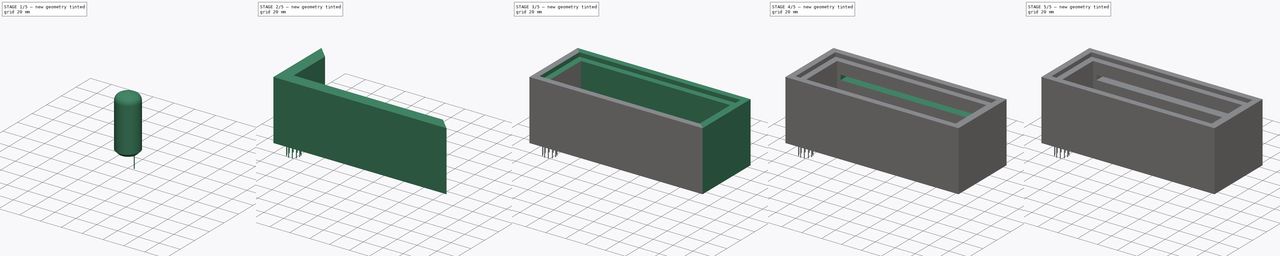
[diagram: build sequence overview — one tinted view per stage of 5, left to right]
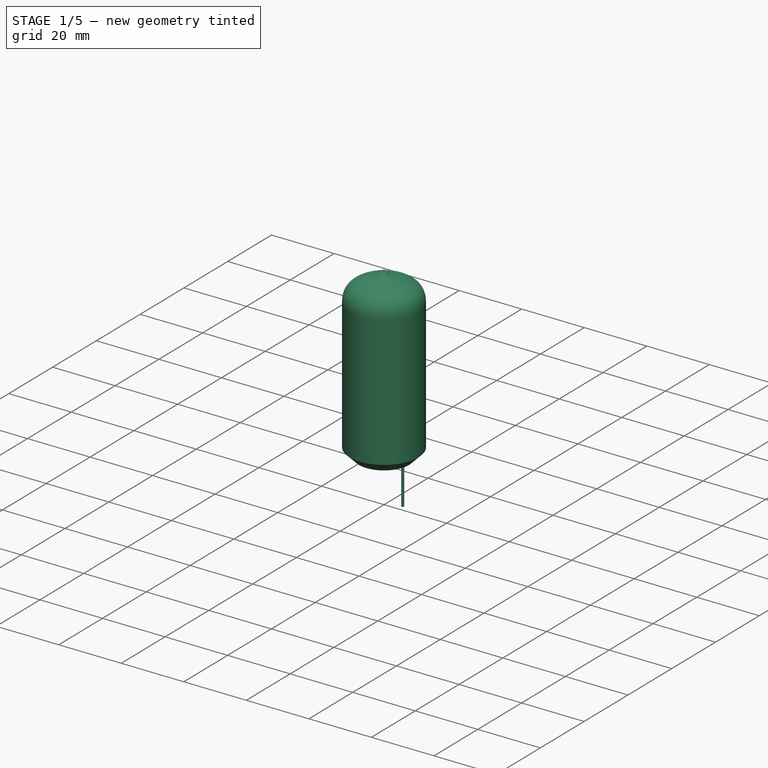
[diagram: stage 1 of 5 — iso view after this stage's code; geometry added in this stage tinted green]
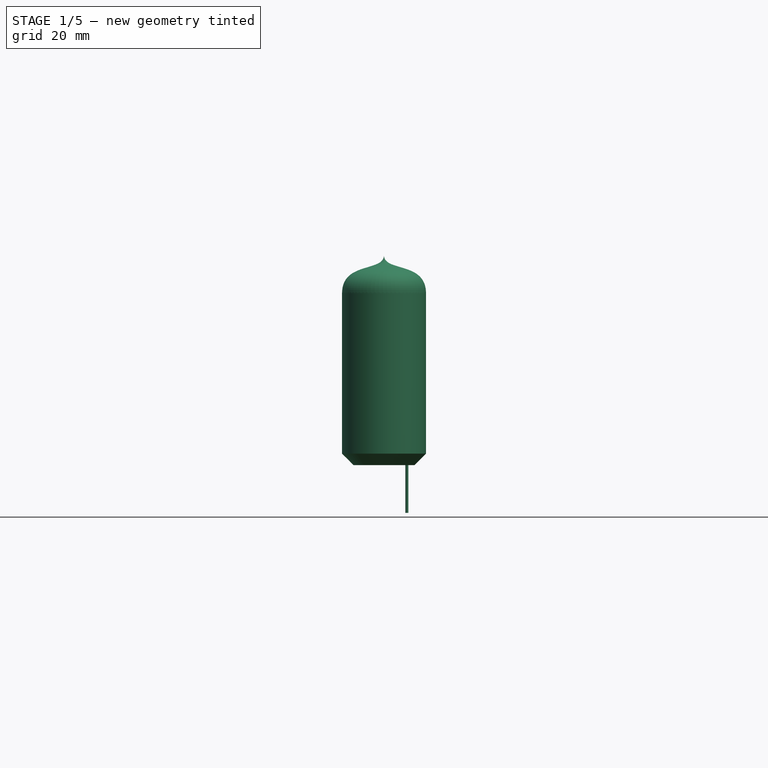
[diagram: stage 1 of 5 — front view after this stage's code; geometry added in this stage tinted green]
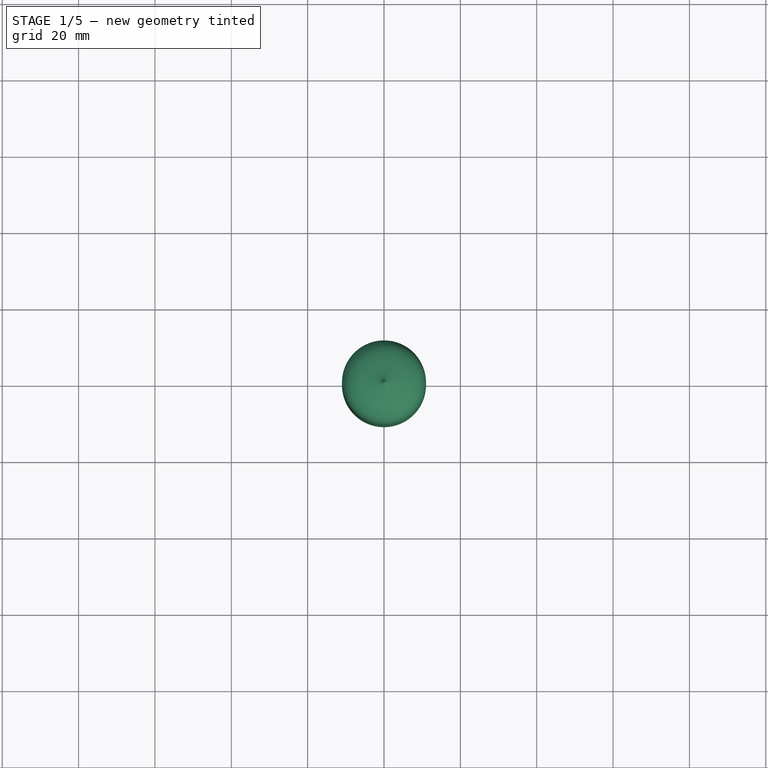
[diagram: stage 1 of 5 — top view after this stage's code; geometry added in this stage tinted green]
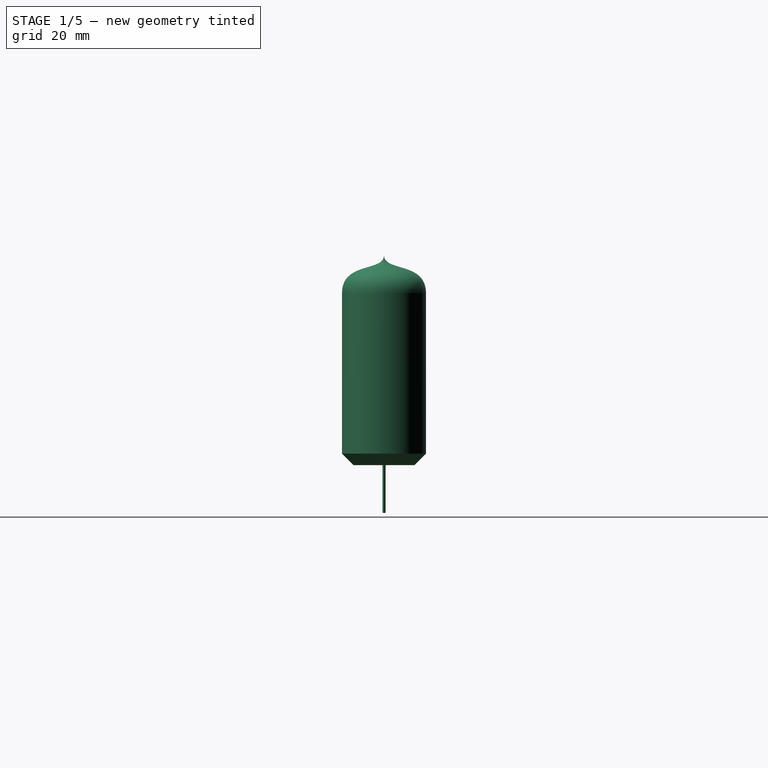
[diagram: stage 1 of 5 — right view after this stage's code; geometry added in this stage tinted green]
FCSTD DOCUMENT  (FreeCAD 0.20R29410 (Git))
Label: aiometer
License: All rights reserved
LicenseURL: http://en.wikipedia.org/wiki/All_rights_reserved
objects: Sketcher::SketchObject×11, PartDesign::CoordinateSystem×10, App::Link×8, PartDesign::Pad×7, PartDesign::Body×3, App::DocumentObjectGroup×3, PartDesign::Pocket×2, PartDesign::Chamfer×2, PartDesign::Hole×1, PartDesign::Fillet×1, PartDesign::Revolution×1, PartDesign::PolarPattern×1, App::FeaturePython×1, App::Part×1
note: 53 computed .brp shape members not serialized (recipe doc carries the construction recipe); baked Part::Feature solids carry a one-line shape summary decoded from their .brp

FEATURE [Sketcher::SketchObject] Sketch012  label="tube"
  FullyConstrained = false
  MapMode = 5
  Placement = pos=(0,0,0) rot=(1,0,0;1.5708rad)
  Support = -> [XZ_Plane003]
  sketch-geometry (10):
    g0: LineSegment StartX=0 StartY=55 StartZ=0 EndX=0 EndY=0 EndZ=0
    g1: LineSegment StartX=0 StartY=0 StartZ=0 EndX=11 EndY=0 EndZ=0
    g2: LineSegment StartX=11 StartY=0 StartZ=0 EndX=11 EndY=45 EndZ=0
    g3-g6: Circle x4 (B-spline internal-alignment scaffolding for g7; pole/knot coordinates omitted)
    g7: BSplineCurve PolesCount=4 KnotsCount=2 Degree=3 IsPeriodic=0
    g8: GeomPoint X=0 Y=55 Z=0
    g9: GeomPoint X=11 Y=45 Z=0
  constraints (20):
    c: PointOnObject(g0,g-2)
    c: Coincident(g0,g-1)
    c: Coincident(g0,g1)
    c: Horizontal(g1)
    c: Coincident(g1,g2)
    c: Vertical(g2)
    c: DistanceX(g1,g1) = 11
    c: DistanceY(g0,g0) = 55
    c: DistanceY(g2,g2) = 45
    c: Weight(g3) = 1
    c: Coincident(g7,g0)
    c: Equal(g3,g4)
    c: Equal(g3,g5)
    c: Equal(g3,g6)
    c: Coincident(g7,g2)
    c: InternalAlignment(g3-g6 -> g7) x4
    c: InternalAlignment(g8,g7)
    c: InternalAlignment(g9,g7)
    c: Vertical(g2,g5)
    c: PointOnObject(g4,g0)
FEATURE [PartDesign::Revolution] Revolution  label="Tube"
  Angle = 360
  Axis = (0,-2e-16,1)
  Base = (0,0,0)
  Placement = pos=(0,0,0) rot=(1,0,0;1.5708rad)
  Profile = -> Sketch012
  ReferenceAxis = -> Sketch012 [V_Axis]
  Reversed = true
FEATURE [Sketcher::SketchObject] Sketch013
  FullyConstrained = true
  MapMode = 5
  Placement = pos=(0,0,0) rot=(1,0,0;3.14159rad)
  Support = -> [Revolution]
  sketch-geometry (1):
    g0: Circle CenterX=6 CenterY=0 CenterZ=0 NormalX=0 NormalY=0 NormalZ=1 AngleXU=0 Radius=0.4
  constraints (3):
    c: Diameter(g0) = 0.8
    c: DistanceX(g-1,g0) = 6
    c: PointOnObject(g0,g-1)
FEATURE [PartDesign::Chamfer] Chamfer001
  Angle = 45
  Base = -> Revolution [Edge1]
  BaseFeature = -> Revolution
  ChamferType = 0
  FlipDirection = false
  Placement = pos=(0,0,0) rot=(1,0,0;1.5708rad)
  Size = 3
  Size2 = 1
  SupportTransform = false
  UseAllEdges = false
FEATURE [PartDesign::Pad] Pad008  label="Lead"
  BaseFeature = -> Chamfer001
  Direction = (0,2e-16,-1)
  Length = 12.5
  Length2 = 10
  Placement = pos=(0,0,0) rot=(1,0,0;1.5708rad)
  Profile = -> Sketch013
  ReferenceAxis = -> Sketch013 [N_Axis]
  Type = 0
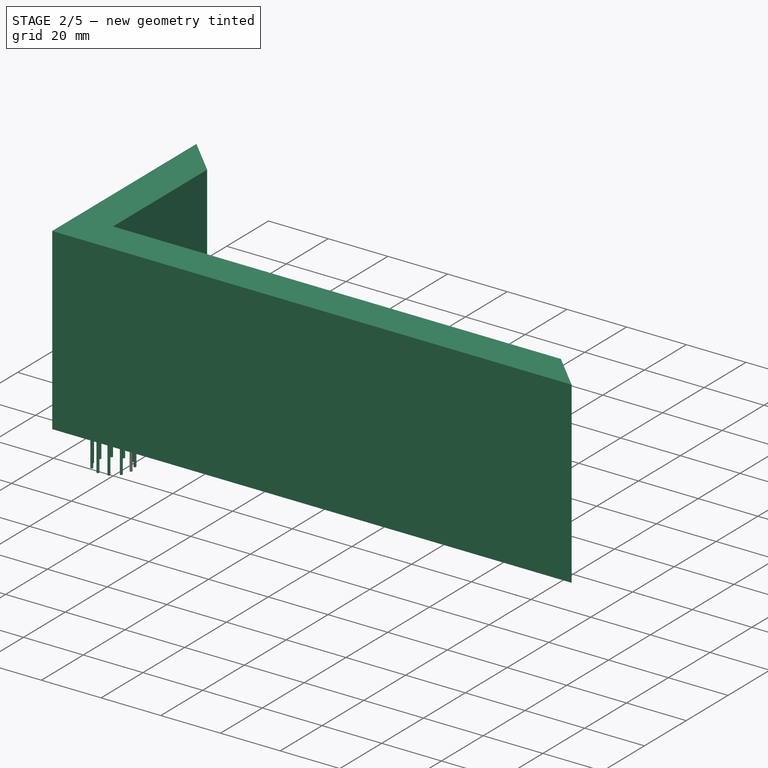
[diagram: stage 2 of 5 — iso view after this stage's code; geometry added in this stage tinted green]
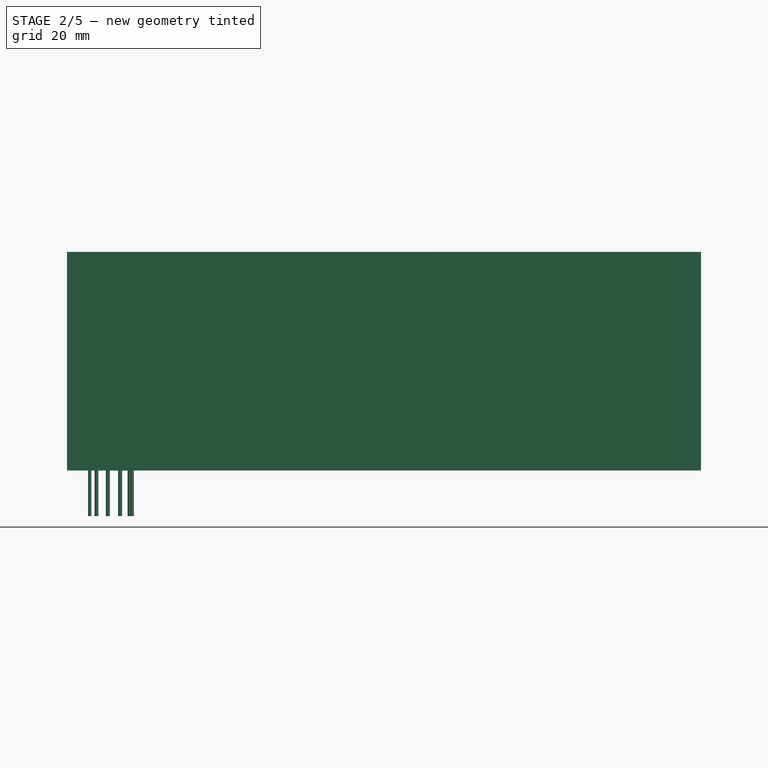
[diagram: stage 2 of 5 — front view after this stage's code; geometry added in this stage tinted green]
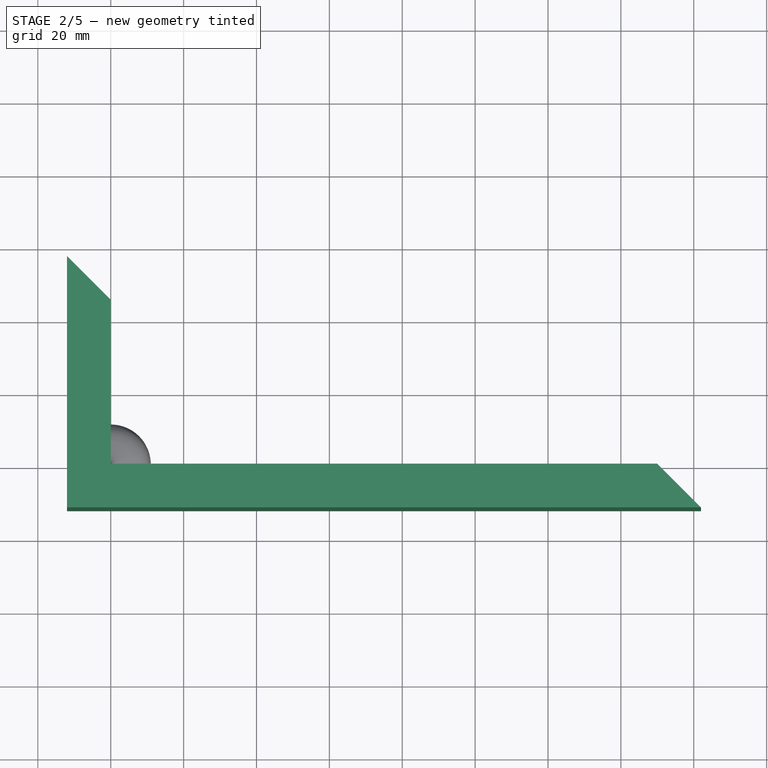
[diagram: stage 2 of 5 — top view after this stage's code; geometry added in this stage tinted green]
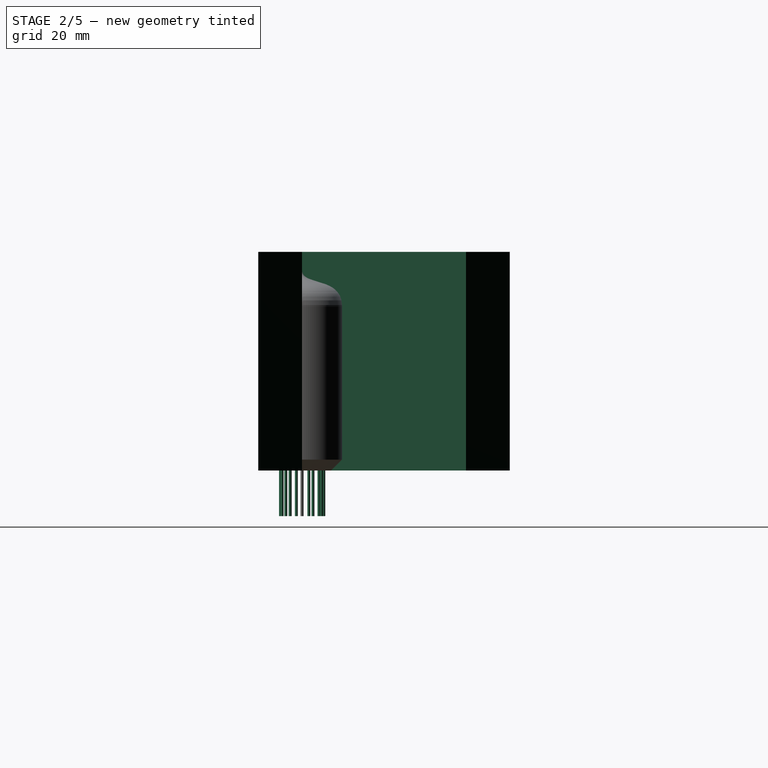
[diagram: stage 2 of 5 — right view after this stage's code; geometry added in this stage tinted green]
FEATURE [Sketcher::SketchObject] Sketch  label="front"
  FullyConstrained = true
  MapMode = 5
  Support = -> [XY_Plane]
  sketch-geometry (4):
    g0: LineSegment StartX=162 StartY=-12 StartZ=0 EndX=150 EndY=0 EndZ=0
    g1: LineSegment StartX=150 StartY=0 StartZ=0 EndX=0 EndY=0 EndZ=0
    g2: LineSegment StartX=0 StartY=0 StartZ=0 EndX=-12 EndY=-12 EndZ=0
    g3: LineSegment StartX=-12 StartY=-12 StartZ=0 EndX=162 EndY=-12 EndZ=0
  constraints (11):
    c: Coincident(g0,g1)
    c: Horizontal(g1)
    c: DistanceX(g1,g1) = 150
    c: DistanceY(g0,g0) = 12
    c: Coincident(g-1,g1)
    c: Coincident(g1,g2)
    c: Coincident(g2,g3)
    c: Coincident(g3,g0)
    c: Horizontal(g3)
    c: Angle(g3,g2) = 0.785398
    c: Angle(g0,g3) = 0.785398
FEATURE [PartDesign::Pad] Pad  label="Front"
  Direction = (0,0,1)
  Length = 60
  Length2 = 10
  Profile = -> Sketch
  ReferenceAxis = -> Sketch [N_Axis]
  Type = 0
FEATURE [Sketcher::SketchObject] Sketch001  label="right"
  ExternalGeometry = -> [Pad,Sketch]
  FullyConstrained = true
  MapMode = 5
  Support = -> [XY_Plane]
  sketch-geometry (4):
    g0: LineSegment StartX=0 StartY=45 StartZ=0 EndX=0 EndY=0 EndZ=0
    g1: LineSegment StartX=0 StartY=0 StartZ=0 EndX=-12 EndY=-12 EndZ=0
    g2: LineSegment StartX=-12 StartY=-12 StartZ=0 EndX=-12 EndY=57 EndZ=0
    g3: LineSegment StartX=-12 StartY=57 StartZ=0 EndX=0 EndY=45 EndZ=0
  constraints (10):
    c: Vertical(g0)
    c: Coincident(g0,g-4)
    c: DistanceY(g0,g0) = 45
    c: Coincident(g0,g1)
    c: Coincident(g1,g2)
    c: Vertical(g2)
    c: Coincident(g2,g3)
    c: Coincident(g3,g0)
    c: Coincident(g1,g-5)
    c: Angle(g2,g3) = 0.785398
FEATURE [PartDesign::Pad] Pad001  label="Right"
  BaseFeature = -> Pad
  Direction = (0,0,1)
  Length = 60
  Length2 = 10
  Profile = -> Sketch001
  ReferenceAxis = -> Sketch001 [N_Axis]
  Type = 0
  expr: Length = Pad.Length
FEATURE [PartDesign::PolarPattern] PolarPattern  label="Leads"
  Angle = 330
  Axis = -> Sketch013 [N_Axis]
  BaseFeature = -> Pad008
  Occurrences = 11
  Originals = -> [Pad008]
  Placement = pos=(0,0,0) rot=(1,0,0;1.5708rad)
FEATURE [PartDesign::CoordinateSystem] LCS_t1
  AttacherType = Attacher::AttachEngine3D
  MapMode = 11
  Placement = pos=(12.5,22.5,0) rot=(0,0,1;1.5708rad)
  Support = -> [Chamfer]
FEATURE [PartDesign::CoordinateSystem] LCS_t2
  AttacherType = Attacher::AttachEngine3D
  MapMode = 11
  Placement = pos=(37.5,22.5,0) rot=(0,0,1;1.5708rad)
  Support = -> [Chamfer]
FEATURE [PartDesign::CoordinateSystem] LCS_t3001  label="LCS_t3"
  AttacherType = Attacher::AttachEngine3D
  MapMode = 11
  Placement = pos=(62.5,22.5,0) rot=(0,0,1;1.5708rad)
  Support = -> [Chamfer]
FEATURE [PartDesign::CoordinateSystem] LCS_t4
  AttacherType = Attacher::AttachEngine3D
  MapMode = 11
  Placement = pos=(87.5,22.5,0) rot=(0,0,1;1.5708rad)
  Support = -> [Chamfer]
FEATURE [PartDesign::CoordinateSystem] LCS_t5
  AttacherType = Attacher::AttachEngine3D
  MapMode = 11
  Placement = pos=(112.5,22.5,0) rot=(0,0,1;1.5708rad)
  Support = -> [Chamfer]
FEATURE [PartDesign::CoordinateSystem] LCS_t6
  AttacherType = Attacher::AttachEngine3D
  MapMode = 11
  Placement = pos=(137.5,22.5,0) rot=(0,0,1;1.5708rad)
  Support = -> [Chamfer]
FEATURE [PartDesign::CoordinateSystem] LCS_sheet
  AttacherType = Attacher::AttachEngine3D
  MapMode = 2
  Support = -> [Chamfer]
FEATURE [PartDesign::Body] Body001  label="Top_sheet"
  Group = -> [Sketch005,Pad005,Sketch009,Hole,Sketch010,Pad007,Fillet,Chamfer,LCS_t1,LCS_t2,LCS_t3001,LCS_t4,LCS_t5,LCS_t6,LCS_sheet]
  Origin = -> Origin001
  Tip = -> Chamfer
FEATURE [PartDesign::CoordinateSystem] LCS_BODY  label="LCS_body"
  AttacherType = Attacher::AttachEngine3D
  MapMode = 5
  Placement = pos=(0,0,56) rot=(0,0,1;0rad)
  Support = -> [Pocket001]
FEATURE [PartDesign::Body] Body
  Group = -> [Sketch,Pad,Sketch001,Pad001,Pad004,Sketch004,Sketch007,Pad006,Sketch008,Pocket,Sketch011,Pocket001,LCS_BODY]
  Origin = -> Origin
  Tip = -> Pocket001
FEATURE [PartDesign::CoordinateSystem] LCS_Origin
  AttacherType = Attacher::AttachEngine3D
  MapMode = 2
  Support = -> [X_Axis004]
FEATURE [App::DocumentObjectGroup] Constraints
FEATURE [App::FeaturePython] Variables  # WARN: FeaturePython — macro-defined, semantics opaque (R4)
  Type = App::PropertyContainer
FEATURE [App::DocumentObjectGroup] Configurations
FEATURE [App::Link] Body003
  AssemblyType = Part::Link
  AttachedBy = #LCS_BODY
  AttachedTo = Parent Assembly#LCS_Origin
  LinkPlacement = pos=(0,0,-56) rot=(0,0,1;0rad)
  LinkedObject = -> Body
  Placement = pos=(0,0,-56) rot=(0,0,1;0rad)
  SolverId = Asm4EE
  expr: Placement = LCS_Origin.Placement * AttachmentOffset * LCS_BODY.Placement ^ -1
FEATURE [App::Link] Top_sheet  label="Top_sheet001"
  AssemblyType = Part::Link
  AttachedBy = #LCS_sheet
  AttachedTo = Body003#LCS_BODY
  LinkedObject = -> Body001
  SolverId = Asm4EE
  expr: Placement = Body003.Placement * LCS_BODY.Placement * AttachmentOffset * LCS_sheet.Placement ^ -1
FEATURE [PartDesign::CoordinateSystem] LCS_tube
  AttacherType = Attacher::AttachEngine3D
  MapMode = 11
  Placement = pos=(0,7e-16,3) rot=(0,0,1;1.5708rad)
  Support = -> [PolarPattern]
FEATURE [PartDesign::Body] Body002  label="VFDtube"
  Group = -> [Sketch012,Revolution,Chamfer001,Sketch013,Pad008,PolarPattern,LCS_tube]
  Origin = -> Origin003
  Placement = pos=(4,19,0) rot=(0,0,1;0rad)
  Tip = -> PolarPattern
FEATURE [App::DocumentObjectGroup] Parts
  Group = -> [Body,Body001,Body002]
FEATURE [App::Link] VFDtube  label="VFDtube_1"
  AssemblyType = Part::Link
  AttachedBy = #LCS_tube
  AttachedTo = Top_sheet#LCS_t1
  LinkPlacement = pos=(12.5,22.5,-3) rot=(0,0,1;0rad)
  LinkedObject = -> Body002
  Placement = pos=(12.5,22.5,-3) rot=(0,0,1;0rad)
  SolverId = Asm4EE
  expr: Placement = Top_sheet.Placement * LCS_t1.Placement * AttachmentOffset * LCS_tube.Placement ^ -1
FEATURE [App::Link] VFDtube_1  label="VFDtube_2"
  AssemblyType = Part::Link
  AttachedBy = #LCS_tube
  AttachedTo = Top_sheet#LCS_t2
  LinkPlacement = pos=(37.5,22.5,-3) rot=(0,0,1;0rad)
  LinkedObject = -> Body002
  Placement = pos=(37.5,22.5,-3) rot=(0,0,1;0rad)
  SolverId = Asm4EE
  expr: Placement = Top_sheet.Placement * LCS_t2.Placement * AttachmentOffset * LCS_tube.Placement ^ -1
FEATURE [App::Link] VFDtube_2  label="VFDtube_3"
  AssemblyType = Part::Link
  AttachedBy = #LCS_tube
  AttachedTo = Top_sheet#LCS_t3001
  LinkPlacement = pos=(62.5,22.5,-3) rot=(0,0,1;0rad)
  LinkedObject = -> Body002
  Placement = pos=(62.5,22.5,-3) rot=(0,0,1;0rad)
  SolverId = Asm4EE
  expr: Placement = Top_sheet.Placement * LCS_t3001.Placement * AttachmentOffset * LCS_tube.Placement ^ -1
FEATURE [App::Link] VFDtube001  label="VFDtube_4"
  AssemblyType = Part::Link
  AttachedBy = #LCS_tube
  AttachedTo = Top_sheet#LCS_t4
  LinkPlacement = pos=(87.5,22.5,-3) rot=(0,0,1;0rad)
  LinkedObject = -> Body002
  Placement = pos=(87.5,22.5,-3) rot=(0,0,1;0rad)
  SolverId = Asm4EE
  expr: Placement = Top_sheet.Placement * LCS_t4.Placement * AttachmentOffset * LCS_tube.Placement ^ -1
FEATURE [App::Link] VFDtube_3  label="VFDtube_5"
  AssemblyType = Part::Link
  AttachedBy = #LCS_tube
  AttachedTo = Top_sheet#LCS_t5
  LinkPlacement = pos=(112.5,22.5,-3) rot=(0,0,1;0rad)
  LinkedObject = -> Body002
  Placement = pos=(112.5,22.5,-3) rot=(0,0,1;0rad)
  SolverId = Asm4EE
  expr: Placement = Top_sheet.Placement * LCS_t5.Placement * AttachmentOffset * LCS_tube.Placement ^ -1
FEATURE [App::Link] VFDtube_4  label="VFDtube_6"
  AssemblyType = Part::Link
  AttachedBy = #LCS_tube
  AttachedTo = Top_sheet#LCS_t6
  LinkPlacement = pos=(137.5,22.5,-3) rot=(0,0,1;0rad)
  LinkedObject = -> Body002
  Placement = pos=(137.5,22.5,-3) rot=(0,0,1;0rad)
  SolverId = Asm4EE
  expr: Placement = Top_sheet.Placement * LCS_t6.Placement * AttachmentOffset * LCS_tube.Placement ^ -1
FEATURE [App::Part] Model
  AssemblyType = Part::Link
  Group = -> [LCS_Origin,Constraints,Variables,Configurations,Body003,Top_sheet,VFDtube,VFDtube_1,VFDtube_2,VFDtube001,VFDtube_3,VFDtube_4]
  Origin = -> Origin004
  Type = Assembly
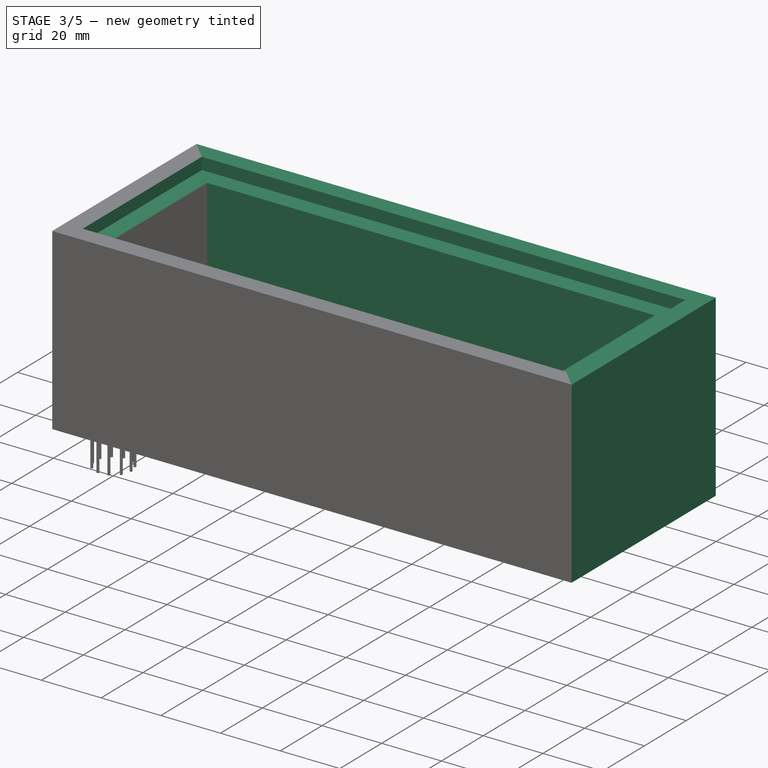
[diagram: stage 3 of 5 — iso view after this stage's code; geometry added in this stage tinted green]
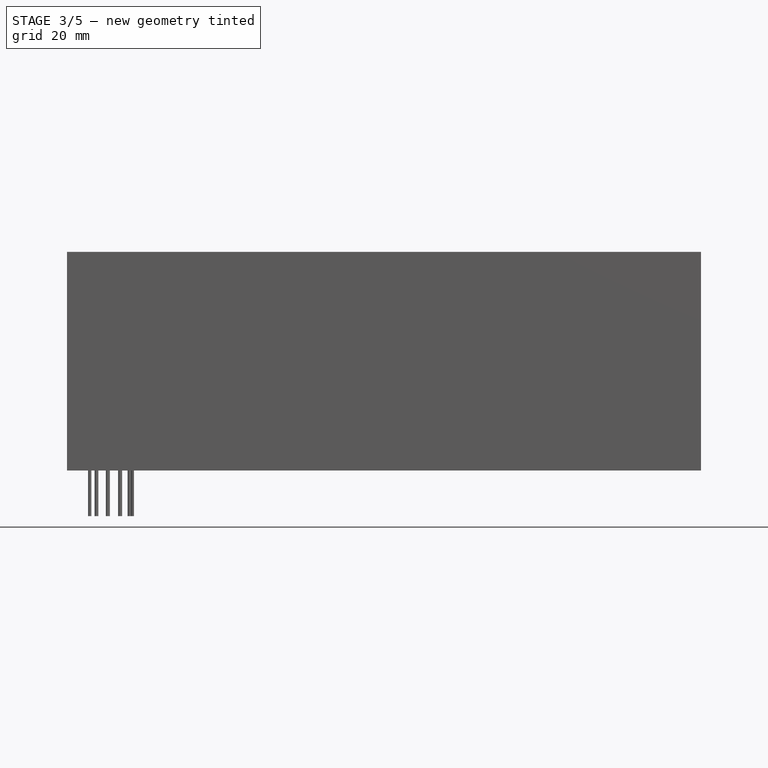
[diagram: stage 3 of 5 — front view after this stage's code; geometry added in this stage tinted green]
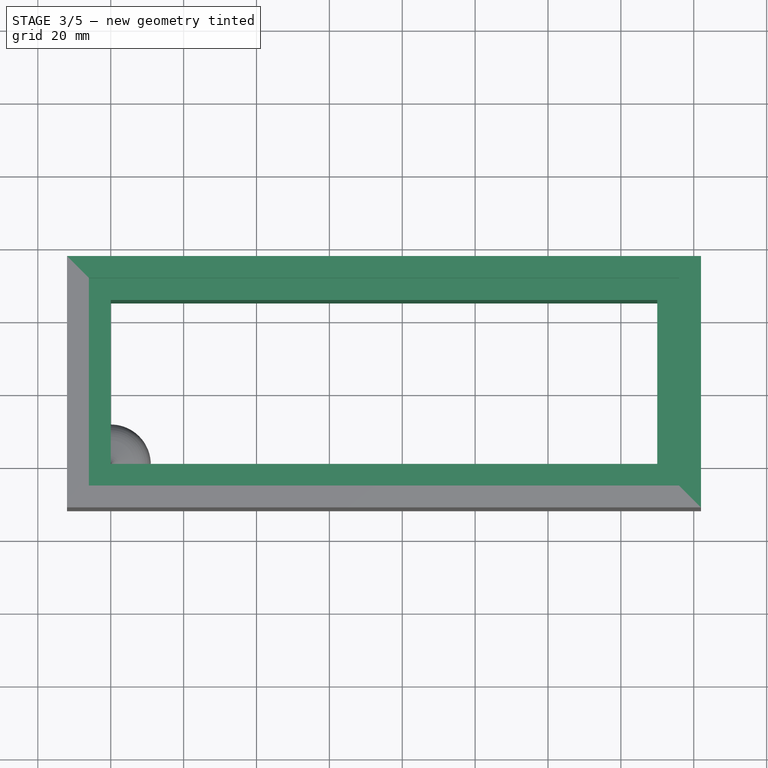
[diagram: stage 3 of 5 — top view after this stage's code; geometry added in this stage tinted green]
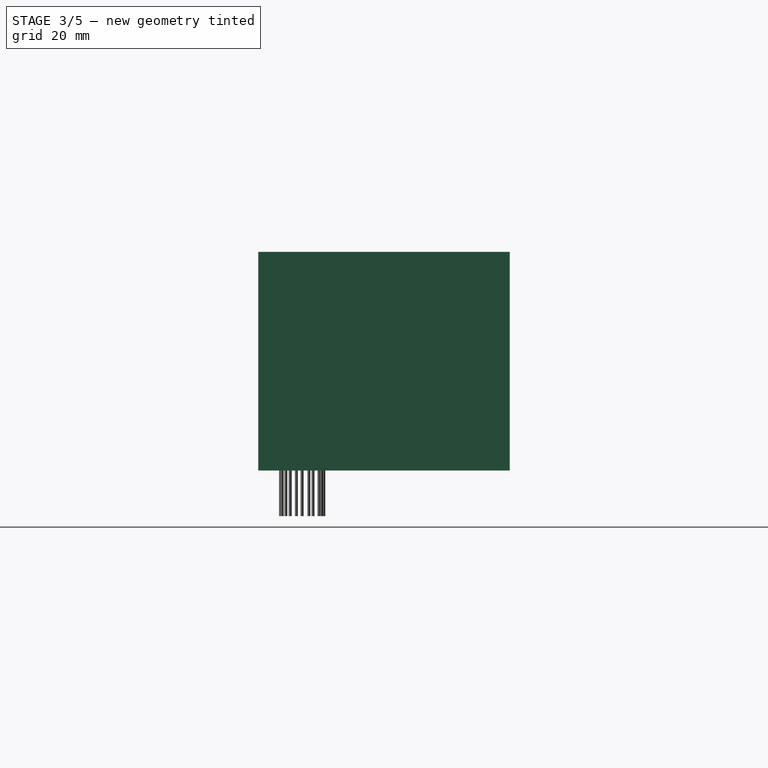
[diagram: stage 3 of 5 — right view after this stage's code; geometry added in this stage tinted green]
FEATURE [Sketcher::SketchObject] Sketch004  label="left"
  ExternalGeometry = -> [Sketch,Sketch001]
  FullyConstrained = true
  MapMode = 5
  Support = -> [XY_Plane]
  sketch-geometry (4):
    g0: LineSegment StartX=150 StartY=0 StartZ=0 EndX=162 EndY=-12 EndZ=0
    g1: LineSegment StartX=162 StartY=-12 StartZ=0 EndX=162 EndY=57 EndZ=0
    g2: LineSegment StartX=162 StartY=57 StartZ=0 EndX=150 EndY=45 EndZ=0
    g3: LineSegment StartX=150 StartY=45 StartZ=0 EndX=150 EndY=0 EndZ=0
  constraints (10):
    c: Coincident(g-4,g0)
    c: Coincident(g0,g-4)
    c: Coincident(g0,g1)
    c: Vertical(g1)
    c: Coincident(g1,g2)
    c: Coincident(g2,g3)
    c: Coincident(g3,g0)
    c: Vertical(g3)
    c: Equal(g3,g-5)
    c: Equal(g1,g-6)
FEATURE [PartDesign::Pad] Pad004  label="Left"
  BaseFeature = -> Pad001
  Direction = (0,0,1)
  Length = 60
  Length2 = 10
  Profile = -> Sketch004
  ReferenceAxis = -> Sketch004 [N_Axis]
  Type = 0
  expr: Length = Pad.Length
FEATURE [Sketcher::SketchObject] Sketch007  label="back"
  ExternalGeometry = -> [Pad004]
  FullyConstrained = true
  MapMode = 5
  Support = -> [XY_Plane]
  sketch-geometry (4):
    g0: LineSegment StartX=-12 StartY=57 StartZ=0 EndX=162 EndY=57 EndZ=0
    g1: LineSegment StartX=162 StartY=57 StartZ=0 EndX=150 EndY=45 EndZ=0
    g2: LineSegment StartX=150 StartY=45 StartZ=0 EndX=0 EndY=45 EndZ=0
    g3: LineSegment StartX=0 StartY=45 StartZ=0 EndX=-12 EndY=57 EndZ=0
  constraints (8):
    c: Coincident(g0,g-3)
    c: Coincident(g0,g-6)
    c: Coincident(g0,g1)
    c: Coincident(g1,g-5)
    c: Coincident(g1,g2)
    c: Coincident(g2,g-4)
    c: Coincident(g2,g3)
    c: Coincident(g3,g0)
FEATURE [PartDesign::Pad] Pad006  label="Back"
  BaseFeature = -> Pad004
  Direction = (0,0,1)
  Length = 60
  Length2 = 10
  Profile = -> Sketch007
  ReferenceAxis = -> Sketch007 [N_Axis]
  Type = 0
  expr: Length = Pad.Length
FEATURE [Sketcher::SketchObject] Sketch008  label="top_step"
  ExternalGeometry = -> [Pad006]
  FullyConstrained = true
  MapMode = 5
  Placement = pos=(0,0,60) rot=(0,0,1;0rad)
  Support = -> [Pad006]
  sketch-geometry (4):
    g0: LineSegment StartX=-6 StartY=51 StartZ=0 EndX=156 EndY=51 EndZ=0
    g1: LineSegment StartX=156 StartY=51 StartZ=0 EndX=156 EndY=-6 EndZ=0
    g2: LineSegment StartX=156 StartY=-6 StartZ=0 EndX=-6 EndY=-6 EndZ=0
    g3: LineSegment StartX=-6 StartY=-6 StartZ=0 EndX=-6 EndY=51 EndZ=0
  constraints (12):
    c: PointOnObject(g0,g-3)
    c: PointOnObject(g0,g-6)
    c: Horizontal(g0)
    c: Coincident(g0,g1)
    c: PointOnObject(g1,g-5)
    c: Vertical(g1)
    c: Coincident(g1,g2)
    c: PointOnObject(g2,g-4)
    c: Horizontal(g2)
    c: Coincident(g2,g3)
    c: Coincident(g3,g0)
    c: DistanceX(g2,g-4) = 6
FEATURE [PartDesign::Pocket] Pocket  label="Top_step"
  BaseFeature = -> Pad006
  Direction = (0,0,-1)
  Length = 4
  Length2 = 5
  Profile = -> Sketch008
  ReferenceAxis = -> Sketch008 [N_Axis]
  Type = 0
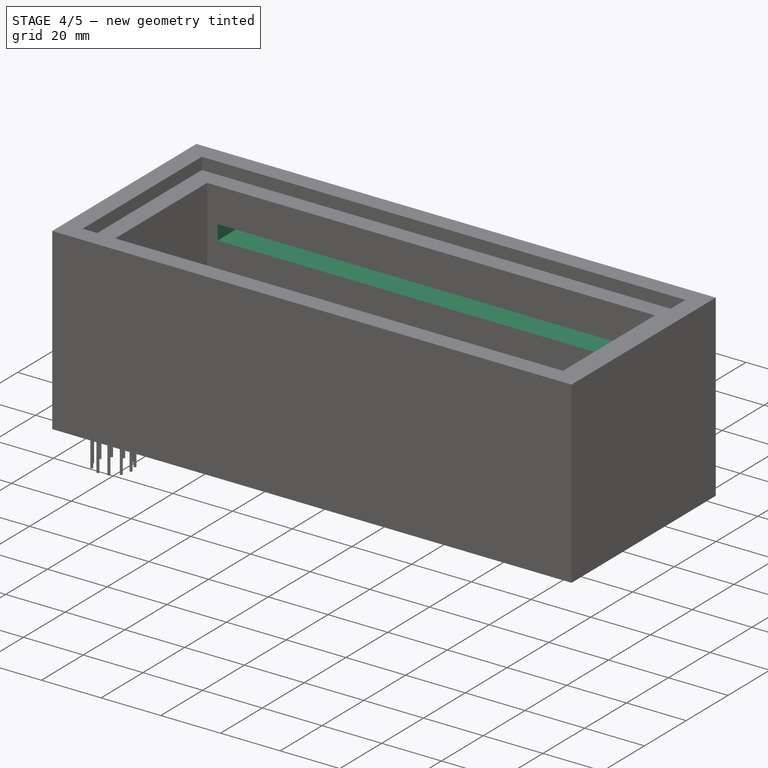
[diagram: stage 4 of 5 — iso view after this stage's code; geometry added in this stage tinted green]
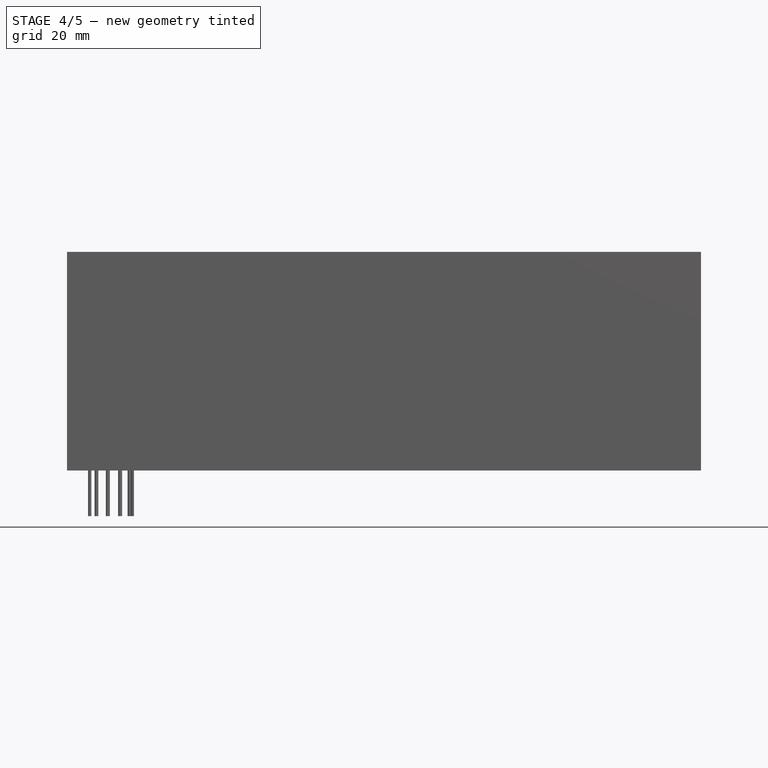
[diagram: stage 4 of 5 — front view after this stage's code; geometry added in this stage tinted green]
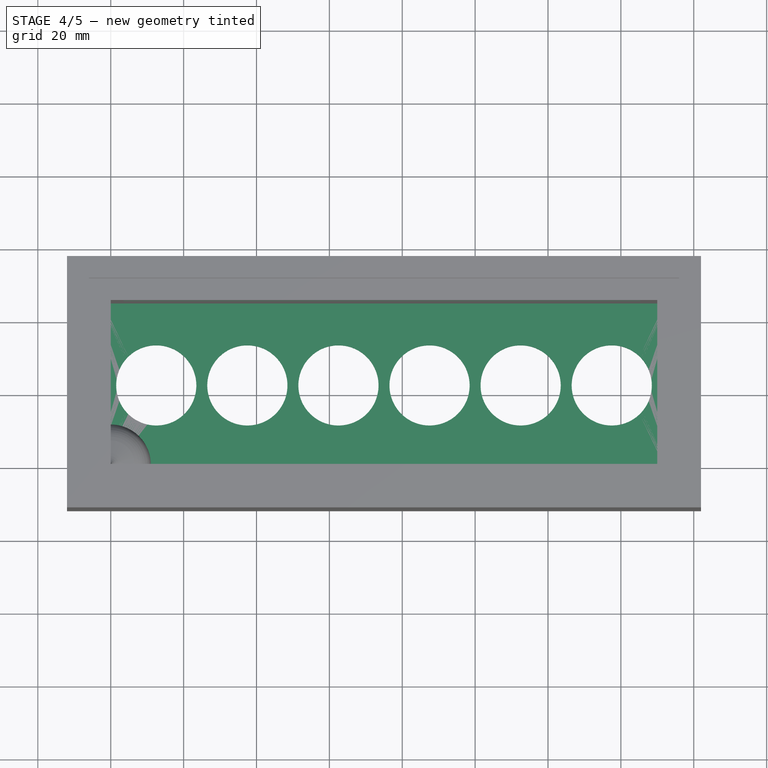
[diagram: stage 4 of 5 — top view after this stage's code; geometry added in this stage tinted green]
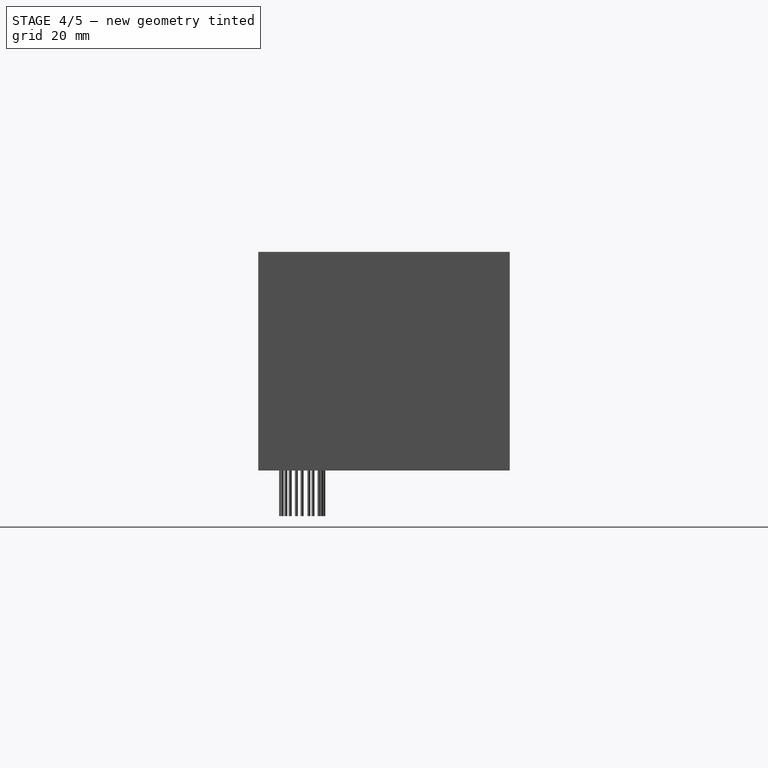
[diagram: stage 4 of 5 — right view after this stage's code; geometry added in this stage tinted green]
FEATURE [Sketcher::SketchObject] Sketch005  label="top"
  FullyConstrained = true
  MapMode = 5
  Support = -> [XY_Plane001]
  sketch-geometry (20):
    g0: LineSegment StartX=0 StartY=45 StartZ=0 EndX=150 EndY=45 EndZ=0
    g1: LineSegment StartX=150 StartY=45 StartZ=0 EndX=150 EndY=0 EndZ=0
    g2: LineSegment StartX=150 StartY=0 StartZ=0 EndX=0 EndY=0 EndZ=0
    g3: Circle CenterX=12.5 CenterY=22.5 CenterZ=0 NormalX=0 NormalY=0 NormalZ=1 AngleXU=0 Radius=11
    g4: Circle CenterX=37.5 CenterY=22.5 CenterZ=0 NormalX=0 NormalY=0 NormalZ=1 AngleXU=0 Radius=11
    g5: LineSegment StartX=12.5 StartY=22.5 StartZ=0 EndX=37.5 EndY=22.5 EndZ=0
    g6: Circle CenterX=62.5 CenterY=22.5 CenterZ=0 NormalX=0 NormalY=0 NormalZ=1 AngleXU=0 Radius=11
    g7: LineSegment StartX=37.5 StartY=22.5 StartZ=0 EndX=62.5 EndY=22.5 EndZ=0
    g8: Circle CenterX=87.5 CenterY=22.5 CenterZ=0 NormalX=0 NormalY=0 NormalZ=1 AngleXU=0 Radius=11
    g9: LineSegment StartX=62.5 StartY=22.5 StartZ=0 EndX=87.5 EndY=22.5 EndZ=0
    g10: Circle CenterX=112.5 CenterY=22.5 CenterZ=0 NormalX=0 NormalY=0 NormalZ=1 AngleXU=0 Radius=11
    g11: LineSegment StartX=87.5 StartY=22.5 StartZ=0 EndX=112.5 EndY=22.5 EndZ=0
    g12: Circle CenterX=137.5 CenterY=22.5 CenterZ=0 NormalX=0 NormalY=0 NormalZ=1 AngleXU=0 Radius=11
    g13: LineSegment StartX=112.5 StartY=22.5 StartZ=0 EndX=137.5 EndY=22.5 EndZ=0
    g14: LineSegment StartX=0 StartY=45 StartZ=0 EndX=0 EndY=0 EndZ=0
    g15: LineSegment StartX=-6 StartY=51 StartZ=0 EndX=156 EndY=51 EndZ=0
    g16: LineSegment StartX=156 StartY=51 StartZ=0 EndX=156 EndY=-6 EndZ=0
    g17: LineSegment StartX=156 StartY=-6 StartZ=0 EndX=-6 EndY=-6 EndZ=0
    g18: LineSegment StartX=-6 StartY=-6 StartZ=0 EndX=-6 EndY=51 EndZ=0
    g19: LineSegment StartX=75 StartY=45 StartZ=0 EndX=75 EndY=0 EndZ=0
  constraints (51):
    c: Coincident(g0,g1)
    c: Coincident(g1,g2)
    c: Horizontal(g0)
    c: Horizontal(g2)
    c: Vertical(g1)
    c: Diameter(g3) = 22
    c: Coincident(g3,g5)
    c: Coincident(g4,g5)
    c: Distance(g5) = 25
    c: Angle(g5) = 0
    c: Coincident(g4,g7)
    c: Coincident(g6,g7)
    c: Equal(g5,g7)
    c: Parallel(g7,g5)
    c: Coincident(g6,g9)
    c: Coincident(g8,g9)
    c: Equal(g5,g9)
    c: Parallel(g9,g5)
    c: Coincident(g8,g11)
    c: Coincident(g10,g11)
    c: Equal(g5,g11)
    c: Parallel(g11,g5)
    c: Coincident(g10,g13)
    c: Coincident(g12,g13)
    c: Equal(g5,g13)
    c: Parallel(g13,g5)
    c: DistanceX(g2,g2) = 150
    c: Coincident(g14,g0)
    c: Coincident(g14,g2)
    c: Coincident(g-1,g2)
    c: Coincident(g15,g16)
    c: Coincident(g16,g17)
    c: Coincident(g17,g18)
    c: Coincident(g18,g15)
    c: Horizontal(g15)
    c: Vertical(g18)
    c: DistanceY(g14,g14) = 45
    c: Equal(g4,g3)
    c: Equal(g3,g6)
    c: Equal(g3,g8)
    c: Equal(g3,g10)
    c: Equal(g3,g12)
    c: Symmetric(g0,g2,g5)
    c: DistanceX(g2,g3) = 12.5
    c: Symmetric(g15,g16,g13)
    c: PointOnObject(g19,g0)
    c: PointOnObject(g19,g2)
    c: Symmetric(g17,g16,g19)
    c: DistanceX(g17,g2) = 6
    c: DistanceY(g17,g2) = 6
    c: Symmetric(g2,g1,g19)
FEATURE [PartDesign::Pad] Pad005  label="Top"
  Direction = (0,0,1)
  Length = 1.5
  Length2 = 10
  Profile = -> Sketch005
  ReferenceAxis = -> Sketch005 [N_Axis]
  Type = 0
FEATURE [Sketcher::SketchObject] Sketch009
  ExternalGeometry = -> [Pad005]
  FullyConstrained = true
  MapMode = 5
  Placement = pos=(0,0,1.5) rot=(0,0,1;0rad)
  Support = -> [Pad005]
  sketch-geometry (10):
    g0: Circle CenterX=152.5 CenterY=47.5 CenterZ=0 NormalX=0 NormalY=0 NormalZ=1 AngleXU=0 Radius=1.5
    g1: Circle CenterX=-2.5 CenterY=47.5 CenterZ=0 NormalX=0 NormalY=0 NormalZ=1 AngleXU=0 Radius=1.5
    g2: LineSegment StartX=-2.5 StartY=47.5 StartZ=0 EndX=152.5 EndY=47.5 EndZ=0
    g3: LineSegment StartX=-2.5 StartY=47.5 StartZ=0 EndX=-2.5 EndY=-2.5 EndZ=0
    g4: LineSegment StartX=152.5 StartY=47.5 StartZ=0 EndX=152.5 EndY=-2.5 EndZ=0
    g5: LineSegment StartX=-2.5 StartY=-2.5 StartZ=0 EndX=152.5 EndY=-2.5 EndZ=0
    g6: LineSegment StartX=75 StartY=47.5 StartZ=0 EndX=75 EndY=-2.5 EndZ=0
    g7: LineSegment StartX=-2.5 StartY=22.5 StartZ=0 EndX=152.5 EndY=22.5 EndZ=0
    g8: Circle CenterX=-2.5 CenterY=-2.5 CenterZ=0 NormalX=0 NormalY=0 NormalZ=1 AngleXU=0 Radius=1.5
    g9: Circle CenterX=152.5 CenterY=-2.5 CenterZ=0 NormalX=0 NormalY=0 NormalZ=1 AngleXU=0 Radius=1.5
  constraints (24):
    c: Horizontal(g2)
    c: Vertical(g4)
    c: Coincident(g3,g2)
    c: Coincident(g2,g4)
    c: Coincident(g5,g3)
    c: Coincident(g5,g4)
    c: DistanceX(g-4,g2) = 3.5
    c: DistanceY(g2,g-4) = 3.5
    c: PointOnObject(g6,g2)
    c: PointOnObject(g6,g5)
    c: PointOnObject(g7,g3)
    c: PointOnObject(g7,g4)
    c: Symmetric(g-5,g-6,g6)
    c: Symmetric(g-4,g-5,g7)
    c: Symmetric(g3,g4,g6)
    c: Symmetric(g3,g2,g7)
    c: Diameter(g1) = 3
    c: Coincident(g1,g2)
    c: Equal(g0,g1)
    c: Coincident(g0,g2)
    c: Equal(g1,g8)
    c: Equal(g1,g9)
    c: Coincident(g3,g8)
    c: Coincident(g9,g4)
FEATURE [PartDesign::Hole] Hole
  BaseFeature = -> Pad005
  CustomThreadClearance = 0
  Depth = 25
  DepthType = 0
  Diameter = 3
  DrillForDepth = false
  DrillPoint = 0
  DrillPointAngle = 118
  HoleCutCountersinkAngle = 90
  HoleCutCustomValues = false
  HoleCutDepth = 0
  HoleCutDiameter = 5.4
  HoleCutType = 2
  ModelThread = false
  Profile = -> Sketch009
  Tapered = false
  TaperedAngle = 90
  ThreadClass = 0
  ThreadDepth = 25
  ThreadDepthType = 0
  ThreadDirection = 0
  ThreadFit = 0
  ThreadSize = 0
  ThreadType = 0
  Threaded = false
  UseCustomThreadClearance = false
FEATURE [Sketcher::SketchObject] Sketch011
  FullyConstrained = false
  MapMode = 5
  Placement = pos=(0,57,0) rot=(0,0.707107,0.707107;3.14159rad)
  Support = -> [Pad006]
  sketch-geometry (4):
    g0: LineSegment StartX=-145.309 StartY=44.4355 StartZ=0 EndX=-3.53485 EndY=44.4355 EndZ=0
    g1: LineSegment StartX=-3.53485 StartY=44.4355 StartZ=0 EndX=-3.53485 EndY=39.5279 EndZ=0
    g2: LineSegment StartX=-3.53485 StartY=39.5279 StartZ=0 EndX=-145.309 EndY=39.5279 EndZ=0
    g3: LineSegment StartX=-145.309 StartY=39.5279 StartZ=0 EndX=-145.309 EndY=44.4355 EndZ=0
  constraints (8):
    c: Coincident(g0,g1)
    c: Coincident(g1,g2)
    c: Coincident(g2,g3)
    c: Coincident(g3,g0)
    c: Horizontal(g0)
    c: Horizontal(g2)
    c: Vertical(g1)
    c: Vertical(g3)
FEATURE [PartDesign::Pocket] Pocket001
  BaseFeature = -> Pocket
  Direction = (0,-1,2e-16)
  Length = 0
  Length2 = 5
  Profile = -> Sketch011
  ReferenceAxis = -> Sketch011 [N_Axis]
  Type = 2
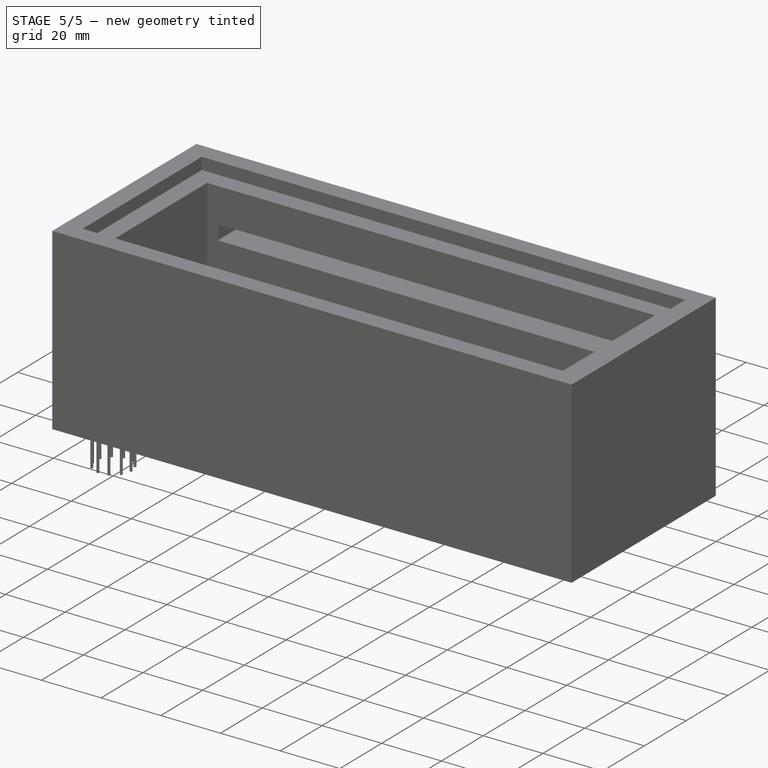
[diagram: stage 5 of 5 — iso view after this stage's code; geometry added in this stage tinted green]
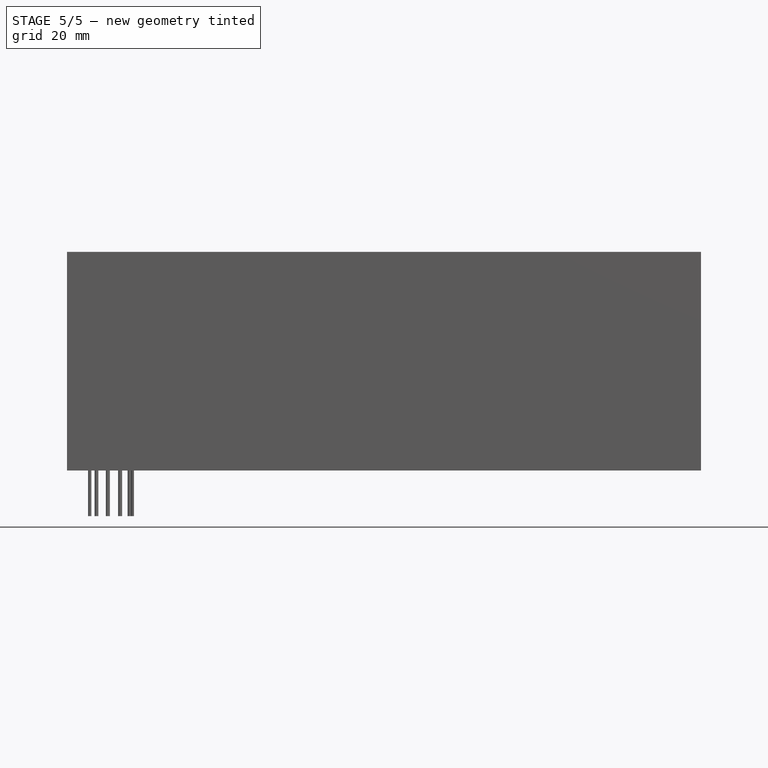
[diagram: stage 5 of 5 — front view after this stage's code; geometry added in this stage tinted green]
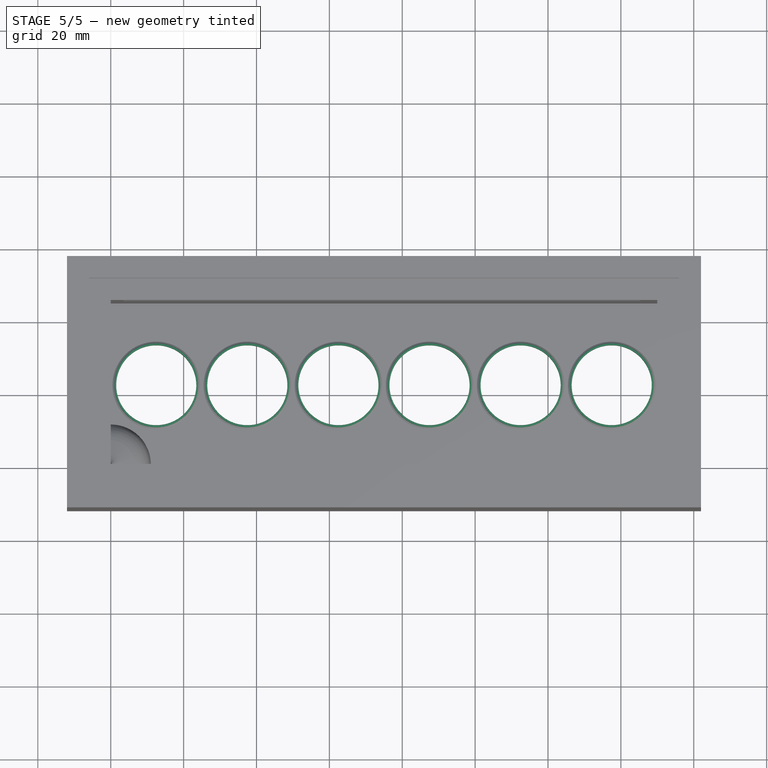
[diagram: stage 5 of 5 — top view after this stage's code; geometry added in this stage tinted green]
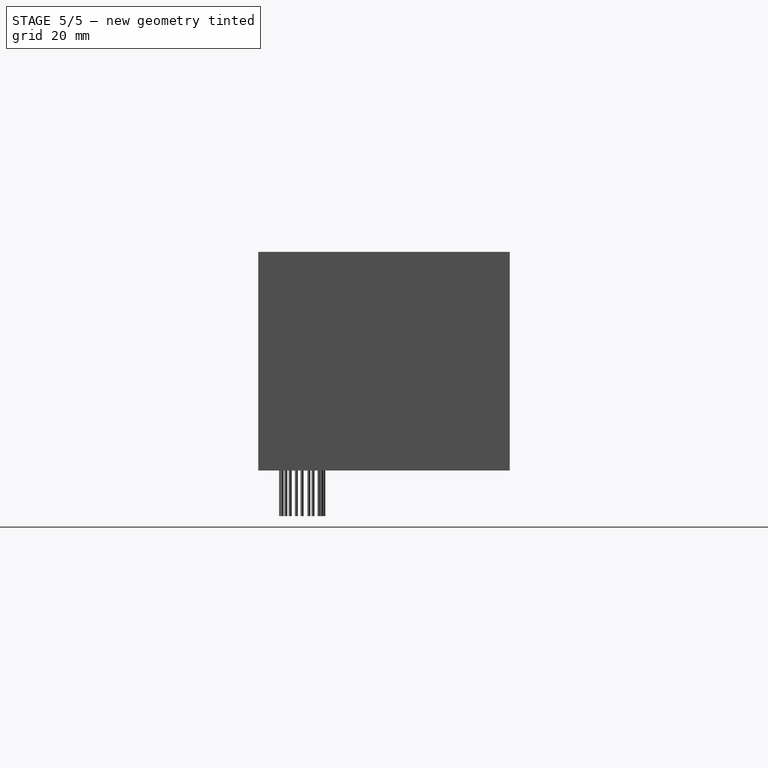
[diagram: stage 5 of 5 — right view after this stage's code; geometry added in this stage tinted green]
FEATURE [Sketcher::SketchObject] Sketch010  label="tube_stub"
  ExternalGeometry = -> [Hole]
  FullyConstrained = true
  MapMode = 5
  Placement = pos=(0,0,1.5) rot=(0,0,1;0rad)
  Support = -> [Hole]
  sketch-geometry (12):
    g0: Circle CenterX=12.5 CenterY=22.5 CenterZ=0 NormalX=0 NormalY=0 NormalZ=1 AngleXU=0 Radius=11
    g1: Circle CenterX=12.5 CenterY=22.5 CenterZ=0 NormalX=0 NormalY=0 NormalZ=1 AngleXU=0 Radius=11.5
    g2: Circle CenterX=37.5 CenterY=22.5 CenterZ=0 NormalX=0 NormalY=0 NormalZ=1 AngleXU=0 Radius=11
    g3: Circle CenterX=37.5 CenterY=22.5 CenterZ=0 NormalX=0 NormalY=0 NormalZ=1 AngleXU=0 Radius=11.5
    g4: Circle CenterX=62.5 CenterY=22.5 CenterZ=0 NormalX=0 NormalY=0 NormalZ=1 AngleXU=0 Radius=11
    g5: Circle CenterX=62.5 CenterY=22.5 CenterZ=0 NormalX=0 NormalY=0 NormalZ=1 AngleXU=0 Radius=11.5
    g6: Circle CenterX=87.5 CenterY=22.5 CenterZ=0 NormalX=0 NormalY=0 NormalZ=1 AngleXU=0 Radius=11
    g7: Circle CenterX=87.5 CenterY=22.5 CenterZ=0 NormalX=0 NormalY=0 NormalZ=1 AngleXU=0 Radius=11.5
    g8: Circle CenterX=112.5 CenterY=22.5 CenterZ=0 NormalX=0 NormalY=0 NormalZ=1 AngleXU=0 Radius=11
    g9: Circle CenterX=137.5 CenterY=22.5 CenterZ=0 NormalX=0 NormalY=0 NormalZ=1 AngleXU=0 Radius=11
    g10: Circle CenterX=112.5 CenterY=22.5 CenterZ=0 NormalX=0 NormalY=0 NormalZ=1 AngleXU=0 Radius=11.5
    g11: Circle CenterX=137.5 CenterY=22.5 CenterZ=0 NormalX=0 NormalY=0 NormalZ=1 AngleXU=0 Radius=11.5
  constraints (24):
    c: Coincident(g0,g-3)
    c: Equal(g0,g-3)
    c: Coincident(g1,g0)
    c: Coincident(g2,g-4)
    c: Equal(g-4,g2)
    c: Coincident(g3,g2)
    c: Coincident(g4,g-5)
    c: Equal(g4,g-5)
    c: Coincident(g5,g4)
    c: Coincident(g6,g-6)
    c: Equal(g6,g-6)
    c: Coincident(g7,g6)
    c: Coincident(g8,g-7)
    c: Coincident(g9,g-8)
    c: Coincident(g10,g8)
    c: Coincident(g11,g9)
    c: Equal(g-7,g8)
    c: Equal(g9,g-8)
    c: Diameter(g1) = 23
    c: Equal(g1,g3)
    c: Equal(g5,g7)
    c: Equal(g10,g11)
    c: Equal(g11,g1)
    c: Equal(g7,g1)
FEATURE [PartDesign::Pad] Pad007  label="Tube_stub"
  BaseFeature = -> Hole
  Direction = (0,0,1)
  Length = 5
  Length2 = 10
  Profile = -> Sketch010
  ReferenceAxis = -> Sketch010 [N_Axis]
  Type = 0
FEATURE [PartDesign::Fillet] Fillet
  Base = -> Pad007 [Face34,Face35,Face36,Face37,Face38,Face33]
  BaseFeature = -> Pad007
  Radius = 0.24
  SupportTransform = false
  UseAllEdges = false
FEATURE [PartDesign::Chamfer] Chamfer
  Angle = 45
  Base = -> Fillet [Face1,Face11,Face12,Face14,Face15,Face16]
  BaseFeature = -> Fillet
  ChamferType = 0
  FlipDirection = false
  Size = 0.5
  Size2 = 1
  SupportTransform = false
  UseAllEdges = false
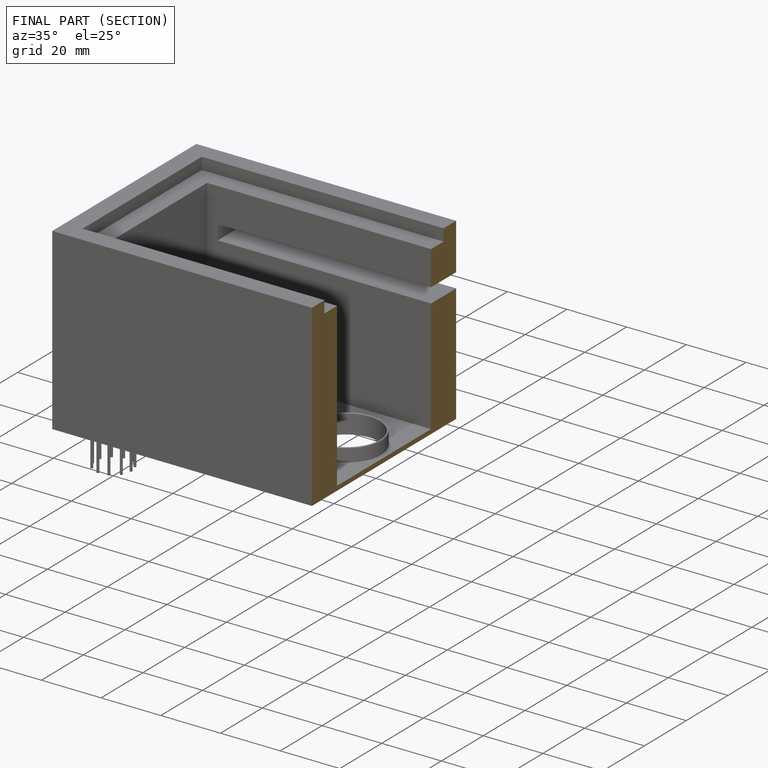
[diagram: finished part — half-section view (interior)]
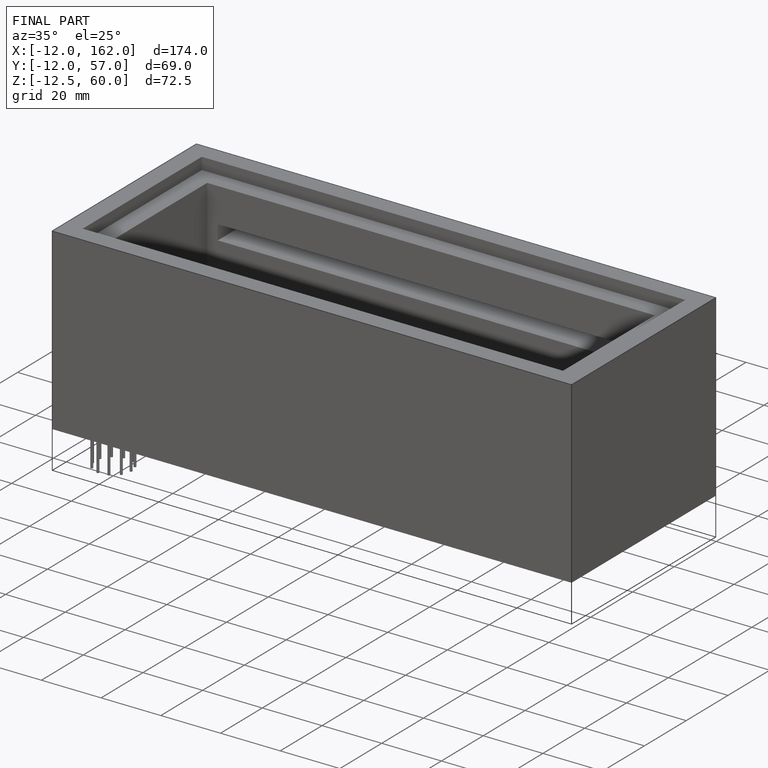
[diagram: finished part — iso view with bounding-box wireframe]
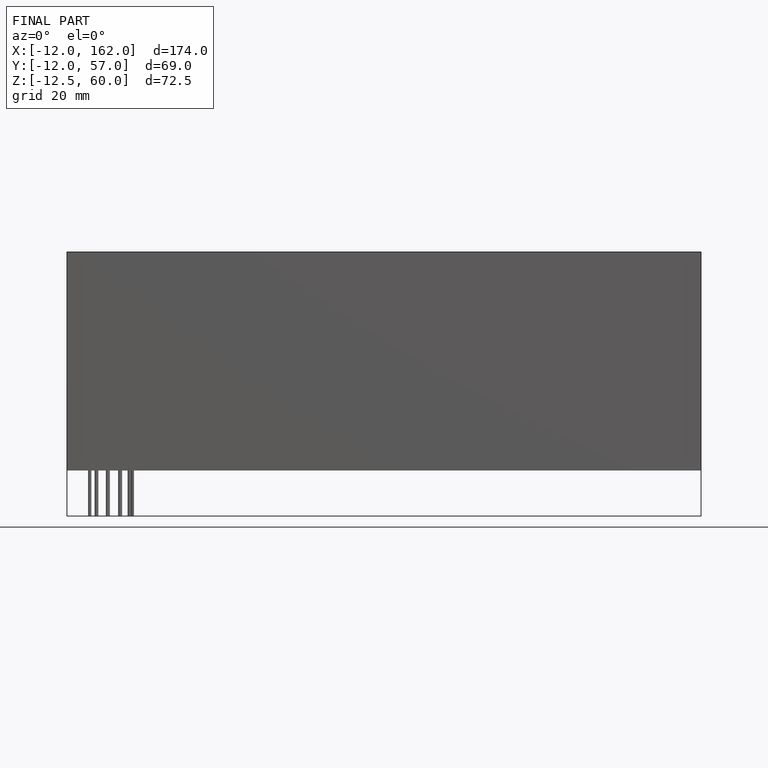
[diagram: finished part — front view with bounding-box wireframe]
